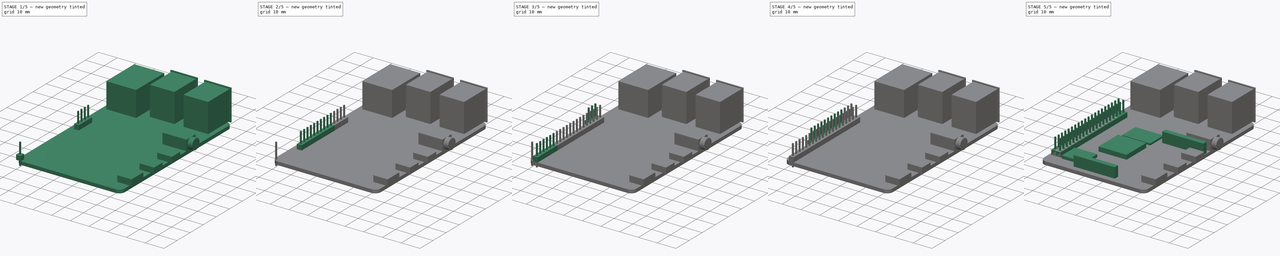
[diagram: build sequence overview — one tinted view per stage of 5, left to right]
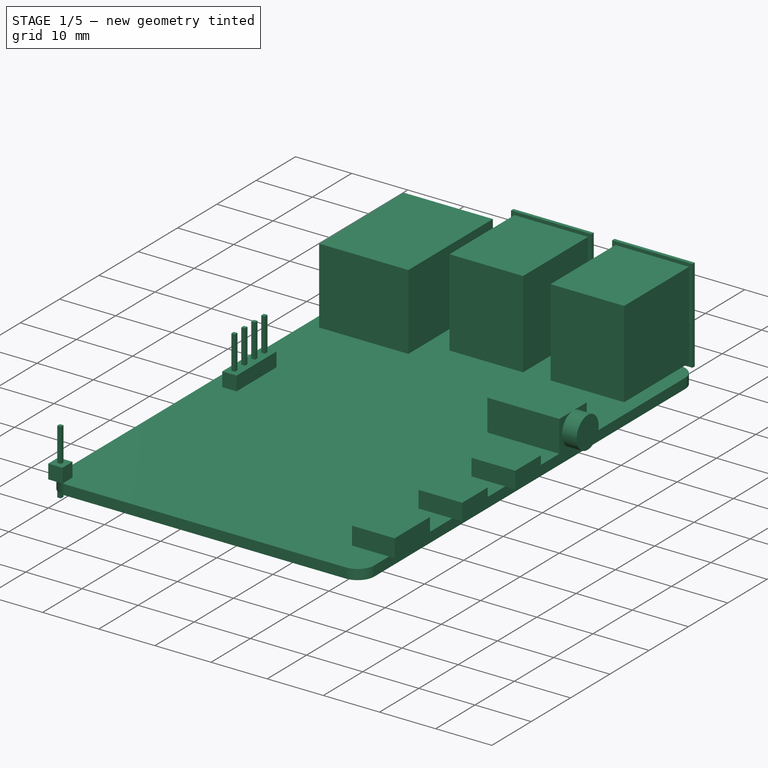
[diagram: stage 1 of 5 — iso view after this stage's code; geometry added in this stage tinted green]
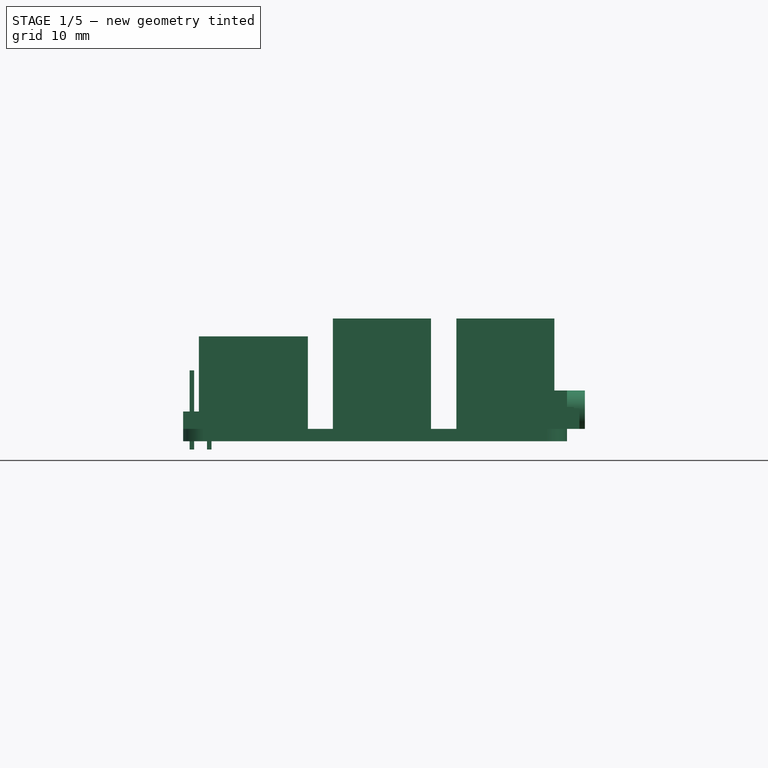
[diagram: stage 1 of 5 — front view after this stage's code; geometry added in this stage tinted green]
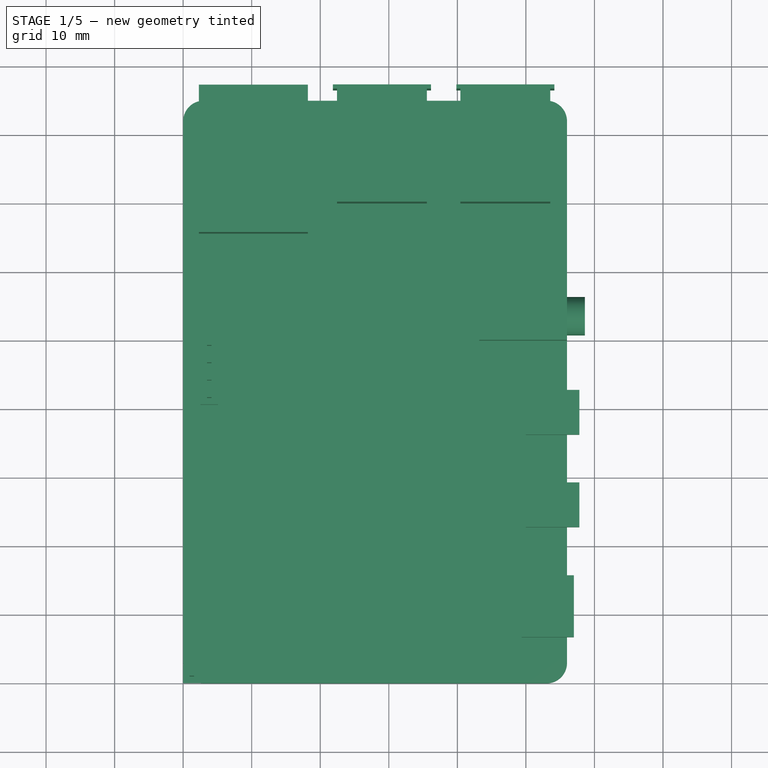
[diagram: stage 1 of 5 — top view after this stage's code; geometry added in this stage tinted green]
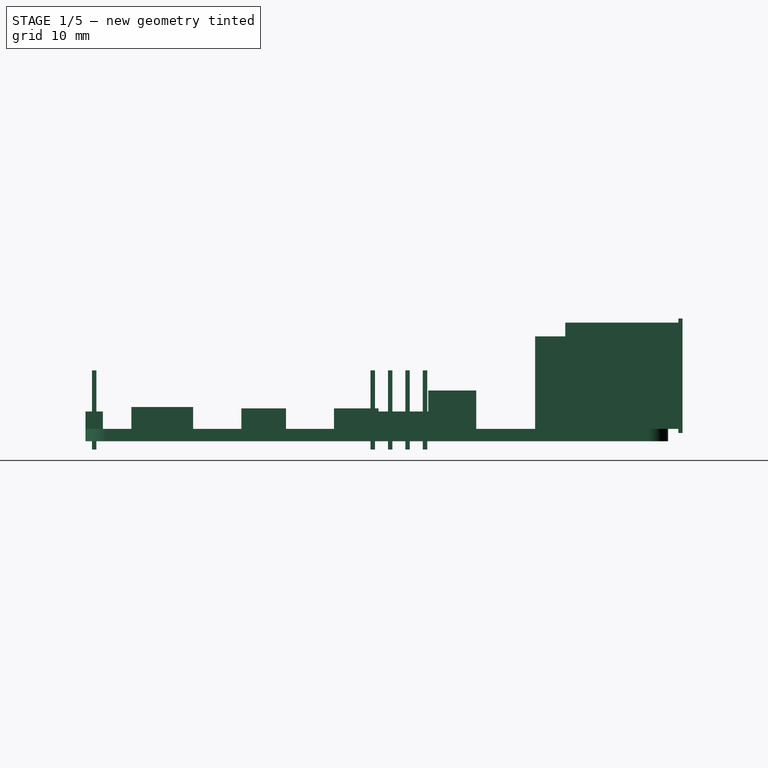
[diagram: stage 1 of 5 — right view after this stage's code; geometry added in this stage tinted green]
FCSTD DOCUMENT  (FreeCAD 0.21R33771 (Git))
Label: RPI_Board_autosave
License: Creative Commons Attribution-ShareAlike 4.0
LicenseURL: https://creativecommons.org/licenses/by-sa/4.0/
objects: Part::Box×94, Part::Fuse×44, Part::Part2DObjectPython×4, Part::MultiFuse×2, Sketcher::SketchObject×2, Part::Cylinder×1, PartDesign::Pad×1, PartDesign::Body×1
note: 150 computed .brp shape members not serialized (recipe doc carries the construction recipe); baked Part::Feature solids carry a one-line shape summary decoded from their .brp

FEATURE [Part::Box] cube075
  AttacherType = Attacher::AttachEngine3D
  Height = 2.54
  Length = 2.54
  Width = 2.54
FEATURE [Part::Box] cube076
  AttacherType = Attacher::AttachEngine3D
  Height = 11.54
  Length = 0.65
  Placement = pos=(0.945,0.945,-3) rot=(0,0,1;0rad)
  Width = 0.65
FEATURE [Part::Box] cube077
  AttacherType = Attacher::AttachEngine3D
  Height = 2.54
  Length = 2.54
  Width = 2.54
FEATURE [Part::Box] cube078
  AttacherType = Attacher::AttachEngine3D
  Height = 11.54
  Length = 0.65
  Placement = pos=(0.945,0.945,-3) rot=(0,0,1;0rad)
  Width = 0.65
FEATURE [Part::Fuse] union036
  Base = -> cube077
  Placement = pos=(2.54,40.64,0) rot=(0,0,1;0rad)
  Tool = -> cube078
FEATURE [Part::Box] cube079
  AttacherType = Attacher::AttachEngine3D
  Height = 2.54
  Length = 2.54
  Width = 2.54
FEATURE [Part::Box] cube080
  AttacherType = Attacher::AttachEngine3D
  Height = 11.54
  Length = 0.65
  Placement = pos=(0.945,0.945,-3) rot=(0,0,1;0rad)
  Width = 0.65
FEATURE [Part::Fuse] union037
  Base = -> cube079
  Placement = pos=(2.54,43.18,0) rot=(0,0,1;0rad)
  Tool = -> cube080
FEATURE [Part::Box] cube081
  AttacherType = Attacher::AttachEngine3D
  Height = 2.54
  Length = 2.54
  Width = 2.54
FEATURE [Part::Box] cube082
  AttacherType = Attacher::AttachEngine3D
  Height = 11.54
  Length = 0.65
  Placement = pos=(0.945,0.945,-3) rot=(0,0,1;0rad)
  Width = 0.65
FEATURE [Part::Fuse] union038
  Base = -> cube081
  Placement = pos=(2.54,45.72,0) rot=(0,0,1;0rad)
  Tool = -> cube082
FEATURE [Part::Box] cube083
  AttacherType = Attacher::AttachEngine3D
  Height = 2.54
  Length = 2.54
  Width = 2.54
FEATURE [Part::Box] cube084
  AttacherType = Attacher::AttachEngine3D
  Height = 11.54
  Length = 0.65
  Placement = pos=(0.945,0.945,-3) rot=(0,0,1;0rad)
  Width = 0.65
FEATURE [Part::Fuse] union039
  Base = -> cube083
  Placement = pos=(2.54,48.26,0) rot=(0,0,1;0rad)
  Tool = -> cube084
FEATURE [Part::Box] cube085
  AttacherType = Attacher::AttachEngine3D
  Height = 13.5
  Length = 15.9
  Placement = pos=(2.3,65.6,0) rot=(0,0,1;0rad)
  Width = 21.5
FEATURE [Part::Box] cube086
  AttacherType = Attacher::AttachEngine3D
  Height = 15.5
  Length = 13.1
  Width = 17.1
FEATURE [Part::Box] cube087
  AttacherType = Attacher::AttachEngine3D
  Height = 16.7
  Length = 14.3
  Placement = pos=(-0.6,16.5,-0.6) rot=(0,0,1;0rad)
  Width = 0.6
FEATURE [Part::Fuse] Group003
  Base = -> cube086
  Placement = pos=(22.45,70,0) rot=(0,0,1;0rad)
  Tool = -> cube087
FEATURE [Part::Box] cube088
  AttacherType = Attacher::AttachEngine3D
  Height = 15.5
  Length = 13.1
  Width = 17.1
FEATURE [Part::Box] cube089
  AttacherType = Attacher::AttachEngine3D
  Height = 16.7
  Length = 14.3
  Placement = pos=(-0.6,16.5,-0.6) rot=(0,0,1;0rad)
  Width = 0.6
FEATURE [Part::Fuse] Group004
  Base = -> cube088
  Placement = pos=(40.45,70,0) rot=(0,0,1;0rad)
  Tool = -> cube089
FEATURE [Part::Box] cube090
  AttacherType = Attacher::AttachEngine3D
  Height = 3
  Length = 7.8
  Placement = pos=(50,22.75,0) rot=(0,0,1;0rad)
  Width = 6.5
FEATURE [Part::Box] cube091
  AttacherType = Attacher::AttachEngine3D
  Height = 3
  Length = 7.8
  Placement = pos=(50,36.25,0) rot=(0,0,1;0rad)
  Width = 6.5
FEATURE [Part::Box] cube092
  AttacherType = Attacher::AttachEngine3D
  Height = 5.6
  Length = 12.8
  Width = 7
FEATURE [Part::Cylinder] cylinder
  Angle = 360
  AttacherType = Attacher::AttachEngine3D
  FirstAngle = 0
  Height = 2.6
  Placement = pos=(12.8,3.5,2.8) rot=(0,1,0;1.5708rad)
  Radius = 2.8
  SecondAngle = 0
FEATURE [Part::Fuse] Group005
  Base = -> cube092
  Placement = pos=(43.2,50,0) rot=(0,0,1;0rad)
  Tool = -> cylinder
FEATURE [Part::Box] cube093
  AttacherType = Attacher::AttachEngine3D
  Height = 3.2
  Length = 7.6
  Placement = pos=(49.4,6.7,0) rot=(0,0,1;0rad)
  Width = 9
FEATURE [Part::Part2DObjectPython] Circle  # Draft 2D object (typed FeaturePython)
  Area = 28.2743
  FirstAngle = 0
  LastAngle = 0
  MakeFace = true
  Placement = pos=(3,3,0) rot=(0,0,1;0rad)
  Radius = 3
FEATURE [Part::Part2DObjectPython] Circle001  # Draft 2D object (typed FeaturePython)
  Area = 28.2743
  FirstAngle = 0
  LastAngle = 0
  MakeFace = true
  Placement = pos=(53,3,0) rot=(0,0,1;0rad)
  Radius = 3
FEATURE [Part::Part2DObjectPython] Circle002  # Draft 2D object (typed FeaturePython)
  Area = 28.2743
  FirstAngle = 0
  LastAngle = 0
  MakeFace = true
  Placement = pos=(53,82,0) rot=(0,0,1;0rad)
  Radius = 3
FEATURE [Part::Part2DObjectPython] Circle003  # Draft 2D object (typed FeaturePython)
  Area = 28.2743
  FirstAngle = 0
  LastAngle = 0
  MakeFace = true
  Placement = pos=(3,82,0) rot=(0,0,1;0rad)
  Radius = 3
FEATURE [Sketcher::SketchObject] Sketch
  FullyConstrained = true
  MapMode = 5
  Support = -> [XY_Plane]
  sketch-geometry (10):
    g0: ArcOfCircle CenterX=3 CenterY=3 CenterZ=0 NormalX=0 NormalY=0 NormalZ=1 AngleXU=0 Radius=3 StartAngle=3.14159 EndAngle=4.71239
    g1: LineSegment StartX=0 StartY=3 StartZ=0 EndX=0 EndY=82 EndZ=0
    g2: ArcOfCircle CenterX=3 CenterY=82 CenterZ=0 NormalX=0 NormalY=0 NormalZ=1 AngleXU=0 Radius=3 StartAngle=1.5708 EndAngle=3.14159
    g3: LineSegment StartX=3 StartY=85 StartZ=0 EndX=53 EndY=85 EndZ=0
    g4: ArcOfCircle CenterX=53 CenterY=82 CenterZ=0 NormalX=0 NormalY=0 NormalZ=1 AngleXU=0 Radius=3 StartAngle=-1.8e-15 EndAngle=1.5708
    g5: LineSegment StartX=56 StartY=82 StartZ=0 EndX=56 EndY=3 EndZ=0
    g6: ArcOfCircle CenterX=53 CenterY=3 CenterZ=0 NormalX=0 NormalY=0 NormalZ=1 AngleXU=0 Radius=3 StartAngle=4.71239 EndAngle=6.28319
    g7: LineSegment StartX=53 StartY=2.904e-13 StartZ=0 EndX=3 EndY=2.904e-13 EndZ=0
    g8: GeomPoint X=0 Y=0 Z=0
    g9: GeomPoint X=56 Y=85 Z=0
  constraints (23):
    c: Tangent(g0,g1) = 1.5708
    c: Tangent(g1,g2) = 1.5708
    c: Tangent(g2,g3) = 1.5708
    c: Tangent(g3,g4) = 1.5708
    c: Tangent(g4,g5) = 1.5708
    c: Tangent(g5,g6) = 1.5708
    c: Tangent(g6,g7) = 1.5708
    c: Tangent(g7,g0) = 1.5708
    c: Horizontal(g3)
    c: Horizontal(g7)
    c: Vertical(g1)
    c: Vertical(g5)
    c: Equal(g0,g2)
    c: Equal(g2,g4)
    c: Equal(g4,g6)
    c: PointOnObject(g8,g1)
    c: PointOnObject(g8,g7)
    c: PointOnObject(g9,g3)
    c: PointOnObject(g9,g5)
    c: Coincident(g8,g-1)
    c: Radius(g2) = 3
    c: DistanceY(g8,g2) = 85
    c: DistanceX(g1,g4) = 56
FEATURE [PartDesign::Pad] Pad
  Direction = (0,0,1)
  Length = 1.8
  Length2 = 10
  Profile = -> Sketch
  ReferenceAxis = -> Sketch [N_Axis]
  Reversed = true
  Type = 0
FEATURE [Sketcher::SketchObject] Sketch001
  FullyConstrained = true
  MapMode = 5
  Support = -> [XY_Plane]
  expr: Constraints[16] = 56 - 3.5
  expr: Constraints[17] = 58 + 3.5
  sketch-geometry (8):
    g0: Circle CenterX=3.5 CenterY=1.25 CenterZ=0 NormalX=0 NormalY=0 NormalZ=1 AngleXU=0 Radius=1.375
    g1: Circle CenterX=56 CenterY=1.25 CenterZ=0 NormalX=0 NormalY=0 NormalZ=1 AngleXU=0 Radius=1.375
    g2: Circle CenterX=3.5 CenterY=62.75 CenterZ=0 NormalX=0 NormalY=0 NormalZ=1 AngleXU=0 Radius=1.375
    g3: Circle CenterX=56 CenterY=62.75 CenterZ=0 NormalX=0 NormalY=0 NormalZ=1 AngleXU=0 Radius=1.375
    g4: LineSegment StartX=3.5 StartY=62.75 StartZ=0 EndX=56 EndY=62.75 EndZ=0
    g5: LineSegment StartX=56 StartY=62.75 StartZ=0 EndX=56 EndY=1.25 EndZ=0
    g6: LineSegment StartX=56 StartY=1.25 StartZ=0 EndX=3.5 EndY=1.25 EndZ=0
    g7: LineSegment StartX=3.5 StartY=1.25 StartZ=0 EndX=3.5 EndY=62.75 EndZ=0
  constraints (20):
    c: Coincident(g4,g5)
    c: Coincident(g5,g6)
    c: Coincident(g6,g7)
    c: Coincident(g7,g4)
    c: Horizontal(g4)
    c: Horizontal(g6)
    c: Vertical(g5)
    c: Vertical(g7)
    c: Coincident(g4,g2)
    c: Coincident(g5,g1)
    c: Coincident(g6,g0)
    c: Coincident(g4,g3)
    c: Diameter(g3) = 2.75
    c: Equal(g3,g2)
    c: Equal(g2,g0)
    c: Equal(g0,g1)
    c: DistanceX(g6,g6) = 52.5
    c: DistanceY(g5,g5) = 61.5
    c: DistanceX(g-1,g0) = 3.5
    c: DistanceY(g-1,g0) = 1.25
FEATURE [PartDesign::Body] Body
  Group = -> [Sketch,Pad,Sketch001]
  Origin = -> Origin
  Tip = -> Pad
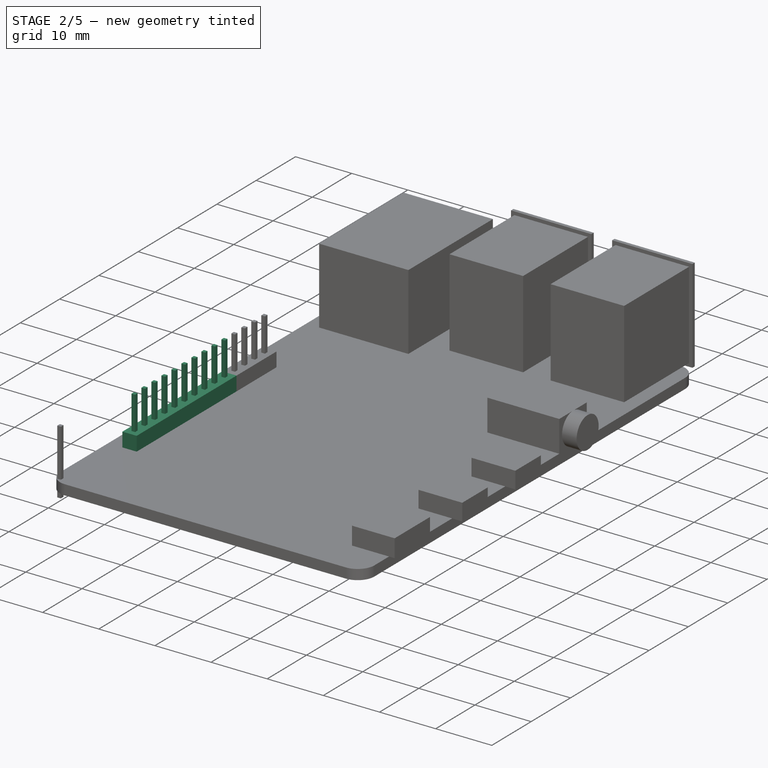
[diagram: stage 2 of 5 — iso view after this stage's code; geometry added in this stage tinted green]
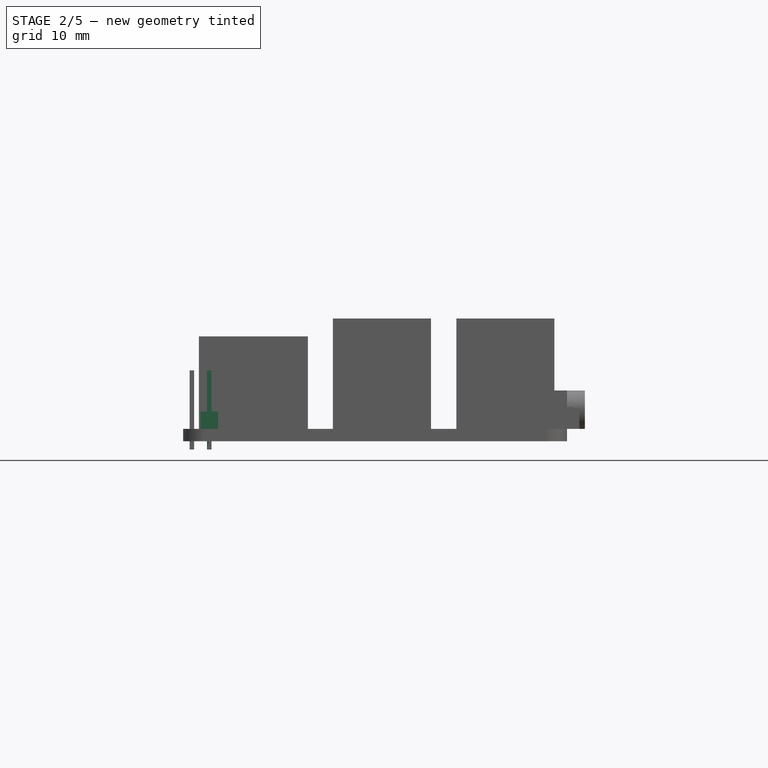
[diagram: stage 2 of 5 — front view after this stage's code; geometry added in this stage tinted green]
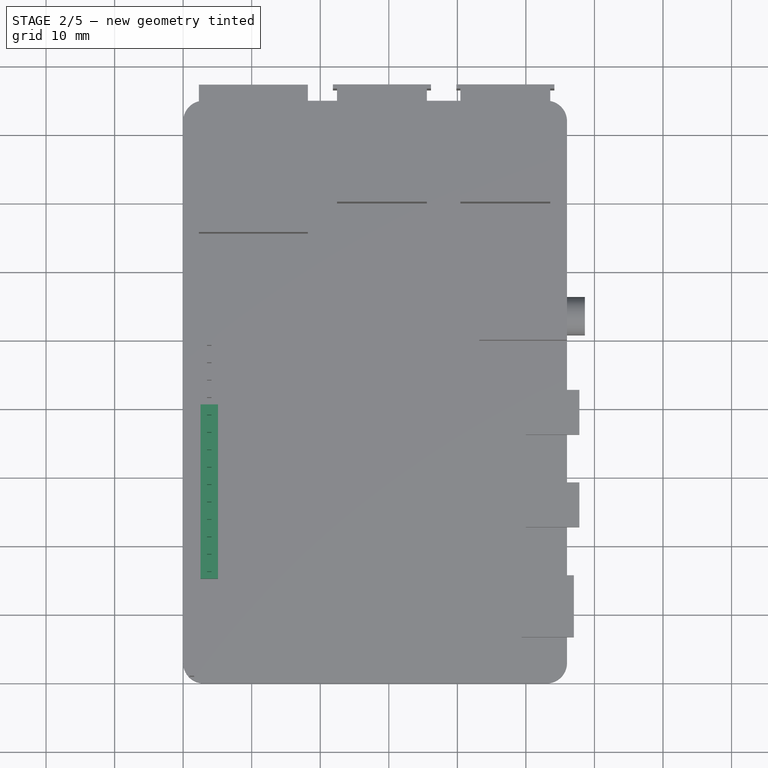
[diagram: stage 2 of 5 — top view after this stage's code; geometry added in this stage tinted green]
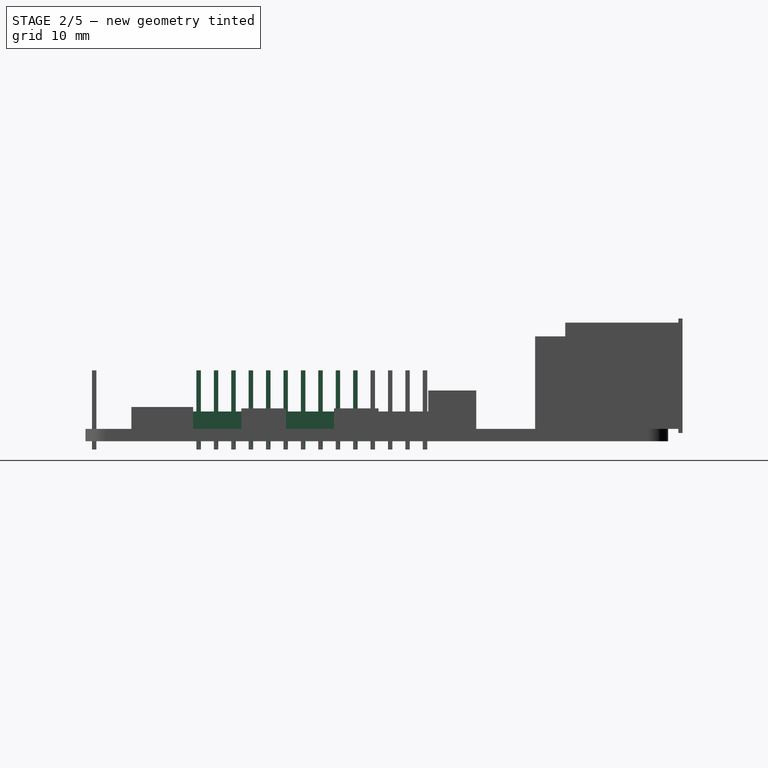
[diagram: stage 2 of 5 — right view after this stage's code; geometry added in this stage tinted green]
FEATURE [Part::Box] cube056
  AttacherType = Attacher::AttachEngine3D
  Height = 11.54
  Length = 0.65
  Placement = pos=(0.945,0.945,-3) rot=(0,0,1;0rad)
  Width = 0.65
FEATURE [Part::Box] cube057
  AttacherType = Attacher::AttachEngine3D
  Height = 2.54
  Length = 2.54
  Width = 2.54
FEATURE [Part::Box] cube058
  AttacherType = Attacher::AttachEngine3D
  Height = 11.54
  Length = 0.65
  Placement = pos=(0.945,0.945,-3) rot=(0,0,1;0rad)
  Width = 0.65
FEATURE [Part::Fuse] union026
  Base = -> cube057
  Placement = pos=(2.54,15.24,0) rot=(0,0,1;0rad)
  Tool = -> cube058
FEATURE [Part::Box] cube059
  AttacherType = Attacher::AttachEngine3D
  Height = 2.54
  Length = 2.54
  Width = 2.54
FEATURE [Part::Box] cube060
  AttacherType = Attacher::AttachEngine3D
  Height = 11.54
  Length = 0.65
  Placement = pos=(0.945,0.945,-3) rot=(0,0,1;0rad)
  Width = 0.65
FEATURE [Part::Fuse] union027
  Base = -> cube059
  Placement = pos=(2.54,17.78,0) rot=(0,0,1;0rad)
  Tool = -> cube060
FEATURE [Part::Box] cube061
  AttacherType = Attacher::AttachEngine3D
  Height = 2.54
  Length = 2.54
  Width = 2.54
FEATURE [Part::Box] cube062
  AttacherType = Attacher::AttachEngine3D
  Height = 11.54
  Length = 0.65
  Placement = pos=(0.945,0.945,-3) rot=(0,0,1;0rad)
  Width = 0.65
FEATURE [Part::Fuse] union028
  Base = -> cube061
  Placement = pos=(2.54,20.32,0) rot=(0,0,1;0rad)
  Tool = -> cube062
FEATURE [Part::Box] cube063
  AttacherType = Attacher::AttachEngine3D
  Height = 2.54
  Length = 2.54
  Width = 2.54
FEATURE [Part::Box] cube064
  AttacherType = Attacher::AttachEngine3D
  Height = 11.54
  Length = 0.65
  Placement = pos=(0.945,0.945,-3) rot=(0,0,1;0rad)
  Width = 0.65
FEATURE [Part::Fuse] union029
  Base = -> cube063
  Placement = pos=(2.54,22.86,0) rot=(0,0,1;0rad)
  Tool = -> cube064
FEATURE [Part::Box] cube065
  AttacherType = Attacher::AttachEngine3D
  Height = 2.54
  Length = 2.54
  Width = 2.54
FEATURE [Part::Box] cube066
  AttacherType = Attacher::AttachEngine3D
  Height = 11.54
  Length = 0.65
  Placement = pos=(0.945,0.945,-3) rot=(0,0,1;0rad)
  Width = 0.65
FEATURE [Part::Fuse] union030
  Base = -> cube065
  Placement = pos=(2.54,25.4,0) rot=(0,0,1;0rad)
  Tool = -> cube066
FEATURE [Part::Box] cube067
  AttacherType = Attacher::AttachEngine3D
  Height = 2.54
  Length = 2.54
  Width = 2.54
FEATURE [Part::Box] cube068
  AttacherType = Attacher::AttachEngine3D
  Height = 11.54
  Length = 0.65
  Placement = pos=(0.945,0.945,-3) rot=(0,0,1;0rad)
  Width = 0.65
FEATURE [Part::Fuse] union031
  Base = -> cube067
  Placement = pos=(2.54,27.94,0) rot=(0,0,1;0rad)
  Tool = -> cube068
FEATURE [Part::Box] cube069
  AttacherType = Attacher::AttachEngine3D
  Height = 2.54
  Length = 2.54
  Width = 2.54
FEATURE [Part::Box] cube070
  AttacherType = Attacher::AttachEngine3D
  Height = 11.54
  Length = 0.65
  Placement = pos=(0.945,0.945,-3) rot=(0,0,1;0rad)
  Width = 0.65
FEATURE [Part::Fuse] union032
  Base = -> cube069
  Placement = pos=(2.54,30.48,0) rot=(0,0,1;0rad)
  Tool = -> cube070
FEATURE [Part::Box] cube071
  AttacherType = Attacher::AttachEngine3D
  Height = 2.54
  Length = 2.54
  Width = 2.54
FEATURE [Part::Box] cube072
  AttacherType = Attacher::AttachEngine3D
  Height = 11.54
  Length = 0.65
  Placement = pos=(0.945,0.945,-3) rot=(0,0,1;0rad)
  Width = 0.65
FEATURE [Part::Fuse] union033
  Base = -> cube071
  Placement = pos=(2.54,33.02,0) rot=(0,0,1;0rad)
  Tool = -> cube072
FEATURE [Part::Box] cube073
  AttacherType = Attacher::AttachEngine3D
  Height = 2.54
  Length = 2.54
  Width = 2.54
FEATURE [Part::Box] cube074
  AttacherType = Attacher::AttachEngine3D
  Height = 11.54
  Length = 0.65
  Placement = pos=(0.945,0.945,-3) rot=(0,0,1;0rad)
  Width = 0.65
FEATURE [Part::Fuse] union034
  Base = -> cube073
  Placement = pos=(2.54,35.56,0) rot=(0,0,1;0rad)
  Tool = -> cube074
FEATURE [Part::Fuse] union035
  Base = -> cube075
  Placement = pos=(2.54,38.1,0) rot=(0,0,1;0rad)
  Tool = -> cube076
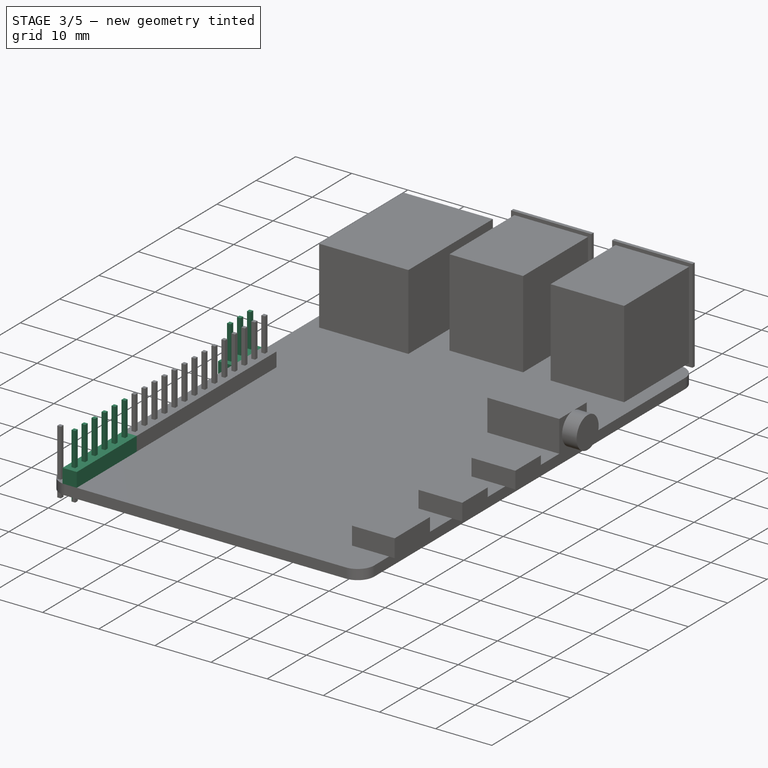
[diagram: stage 3 of 5 — iso view after this stage's code; geometry added in this stage tinted green]
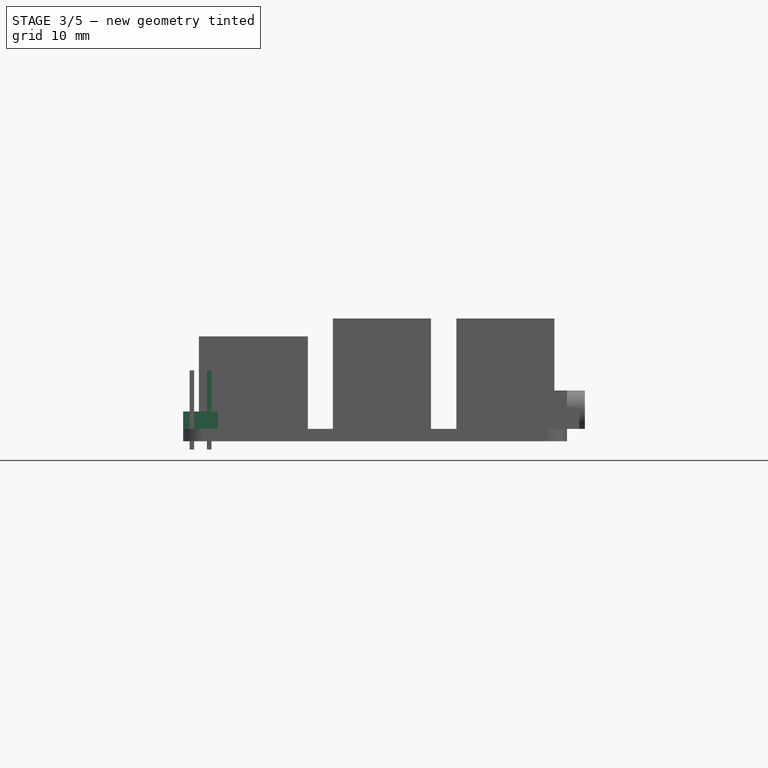
[diagram: stage 3 of 5 — front view after this stage's code; geometry added in this stage tinted green]
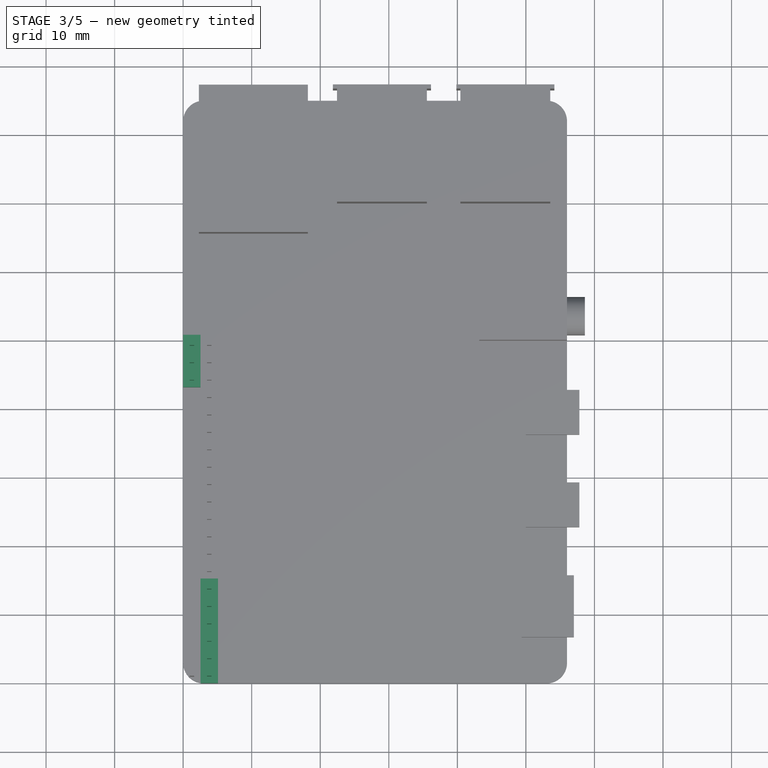
[diagram: stage 3 of 5 — top view after this stage's code; geometry added in this stage tinted green]
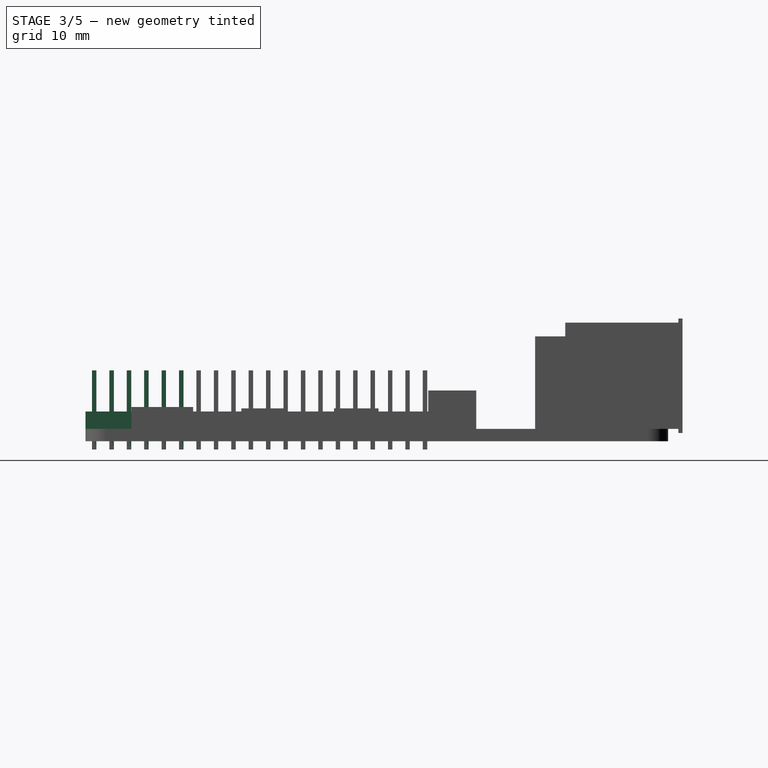
[diagram: stage 3 of 5 — right view after this stage's code; geometry added in this stage tinted green]
FEATURE [Part::Box] cube038
  AttacherType = Attacher::AttachEngine3D
  Height = 11.54
  Length = 0.65
  Placement = pos=(0.945,0.945,-3) rot=(0,0,1;0rad)
  Width = 0.65
FEATURE [Part::Box] cube039
  AttacherType = Attacher::AttachEngine3D
  Height = 2.54
  Length = 2.54
  Width = 2.54
FEATURE [Part::Box] cube040
  AttacherType = Attacher::AttachEngine3D
  Height = 11.54
  Length = 0.65
  Placement = pos=(0.945,0.945,-3) rot=(0,0,1;0rad)
  Width = 0.65
FEATURE [Part::Fuse] union017
  Base = -> cube039
  Placement = pos=(0,43.18,0) rot=(0,0,1;0rad)
  Tool = -> cube040
FEATURE [Part::Box] cube041
  AttacherType = Attacher::AttachEngine3D
  Height = 2.54
  Length = 2.54
  Width = 2.54
FEATURE [Part::Box] cube042
  AttacherType = Attacher::AttachEngine3D
  Height = 11.54
  Length = 0.65
  Placement = pos=(0.945,0.945,-3) rot=(0,0,1;0rad)
  Width = 0.65
FEATURE [Part::Fuse] union018
  Base = -> cube041
  Placement = pos=(0,45.72,0) rot=(0,0,1;0rad)
  Tool = -> cube042
FEATURE [Part::Box] cube043
  AttacherType = Attacher::AttachEngine3D
  Height = 2.54
  Length = 2.54
  Width = 2.54
FEATURE [Part::Box] cube044
  AttacherType = Attacher::AttachEngine3D
  Height = 11.54
  Length = 0.65
  Placement = pos=(0.945,0.945,-3) rot=(0,0,1;0rad)
  Width = 0.65
FEATURE [Part::Fuse] union019
  Base = -> cube043
  Placement = pos=(0,48.26,0) rot=(0,0,1;0rad)
  Tool = -> cube044
FEATURE [Part::Box] cube045
  AttacherType = Attacher::AttachEngine3D
  Height = 2.54
  Length = 2.54
  Width = 2.54
FEATURE [Part::Box] cube046
  AttacherType = Attacher::AttachEngine3D
  Height = 11.54
  Length = 0.65
  Placement = pos=(0.945,0.945,-3) rot=(0,0,1;0rad)
  Width = 0.65
FEATURE [Part::Fuse] union020
  Base = -> cube045
  Placement = pos=(2.54,0,0) rot=(0,0,1;0rad)
  Tool = -> cube046
FEATURE [Part::Box] cube047
  AttacherType = Attacher::AttachEngine3D
  Height = 2.54
  Length = 2.54
  Width = 2.54
FEATURE [Part::Box] cube048
  AttacherType = Attacher::AttachEngine3D
  Height = 11.54
  Length = 0.65
  Placement = pos=(0.945,0.945,-3) rot=(0,0,1;0rad)
  Width = 0.65
FEATURE [Part::Fuse] union021
  Base = -> cube047
  Placement = pos=(2.54,2.54,0) rot=(0,0,1;0rad)
  Tool = -> cube048
FEATURE [Part::Box] cube049
  AttacherType = Attacher::AttachEngine3D
  Height = 2.54
  Length = 2.54
  Width = 2.54
FEATURE [Part::Box] cube050
  AttacherType = Attacher::AttachEngine3D
  Height = 11.54
  Length = 0.65
  Placement = pos=(0.945,0.945,-3) rot=(0,0,1;0rad)
  Width = 0.65
FEATURE [Part::Fuse] union022
  Base = -> cube049
  Placement = pos=(2.54,5.08,0) rot=(0,0,1;0rad)
  Tool = -> cube050
FEATURE [Part::Box] cube051
  AttacherType = Attacher::AttachEngine3D
  Height = 2.54
  Length = 2.54
  Width = 2.54
FEATURE [Part::Box] cube052
  AttacherType = Attacher::AttachEngine3D
  Height = 11.54
  Length = 0.65
  Placement = pos=(0.945,0.945,-3) rot=(0,0,1;0rad)
  Width = 0.65
FEATURE [Part::Fuse] union023
  Base = -> cube051
  Placement = pos=(2.54,7.62,0) rot=(0,0,1;0rad)
  Tool = -> cube052
FEATURE [Part::Box] cube053
  AttacherType = Attacher::AttachEngine3D
  Height = 2.54
  Length = 2.54
  Width = 2.54
FEATURE [Part::Box] cube054
  AttacherType = Attacher::AttachEngine3D
  Height = 11.54
  Length = 0.65
  Placement = pos=(0.945,0.945,-3) rot=(0,0,1;0rad)
  Width = 0.65
FEATURE [Part::Fuse] union024
  Base = -> cube053
  Placement = pos=(2.54,10.16,0) rot=(0,0,1;0rad)
  Tool = -> cube054
FEATURE [Part::Box] cube055
  AttacherType = Attacher::AttachEngine3D
  Height = 2.54
  Length = 2.54
  Width = 2.54
FEATURE [Part::Fuse] union025
  Base = -> cube055
  Placement = pos=(2.54,12.7,0) rot=(0,0,1;0rad)
  Tool = -> cube056
FEATURE [Part::MultiFuse] Group001
  Shapes = -> [union020,union021,union022,union023,union024,union025,union026,union027,union028,union029,union030,union031,union032,union033,union034,union035,union036,union037,union038,union039]
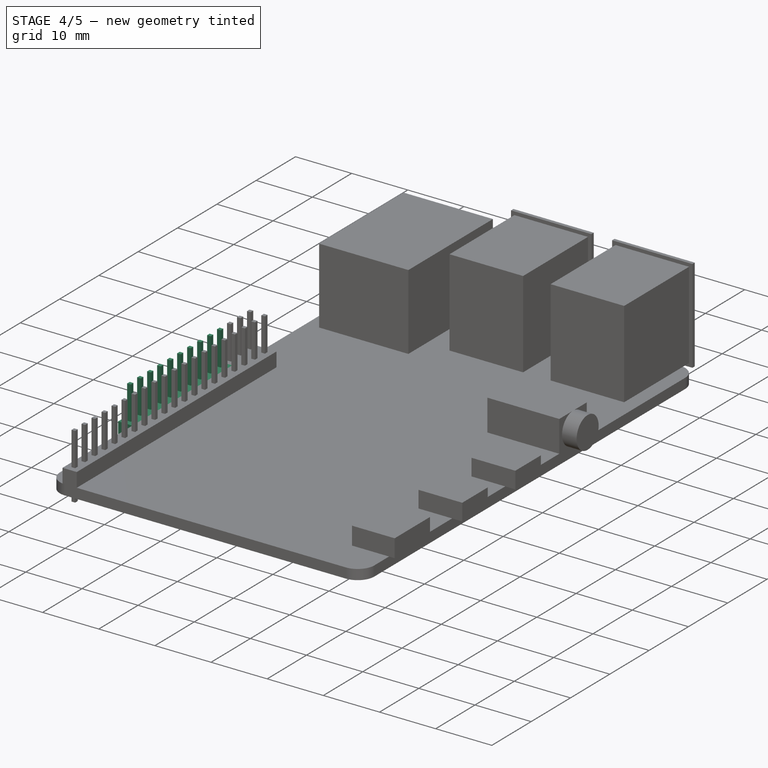
[diagram: stage 4 of 5 — iso view after this stage's code; geometry added in this stage tinted green]
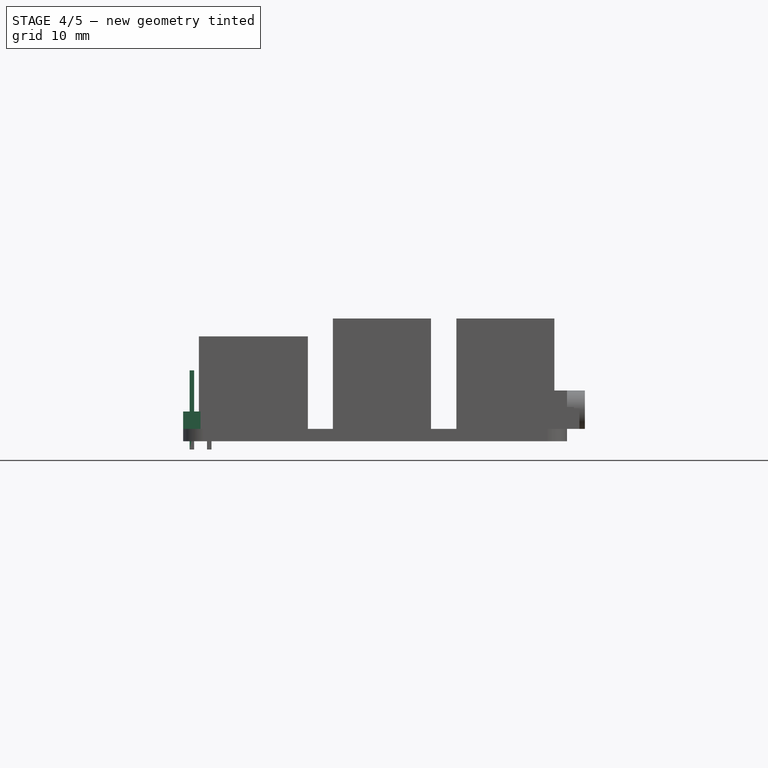
[diagram: stage 4 of 5 — front view after this stage's code; geometry added in this stage tinted green]
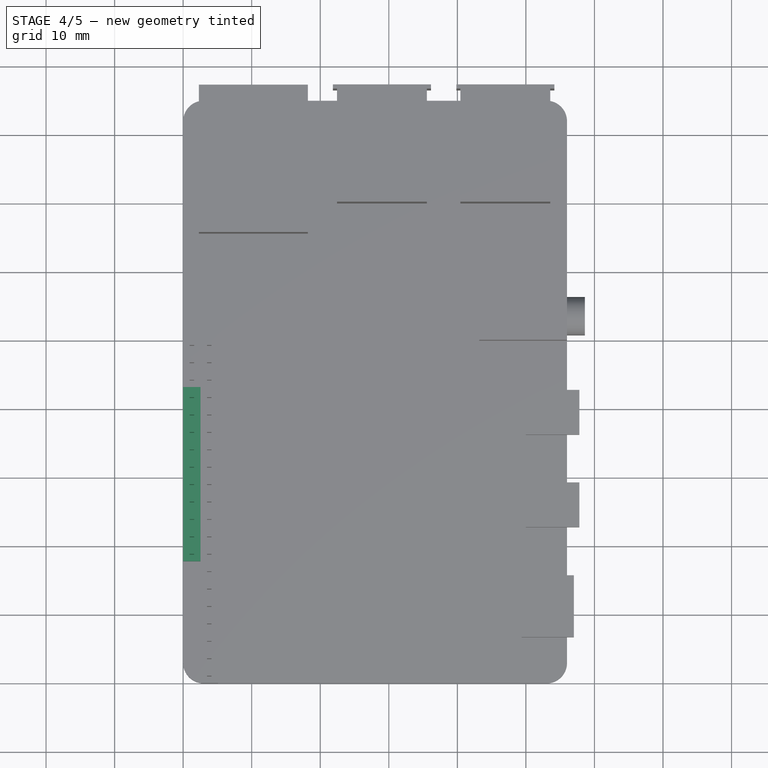
[diagram: stage 4 of 5 — top view after this stage's code; geometry added in this stage tinted green]
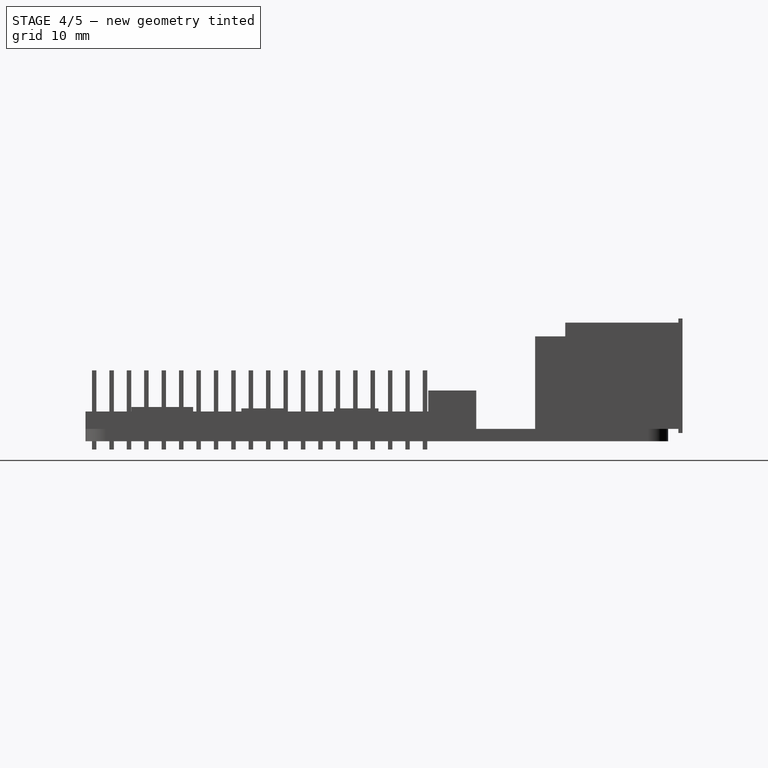
[diagram: stage 4 of 5 — right view after this stage's code; geometry added in this stage tinted green]
FEATURE [Part::Box] cube019
  AttacherType = Attacher::AttachEngine3D
  Height = 2.54
  Length = 2.54
  Width = 2.54
FEATURE [Part::Box] cube020
  AttacherType = Attacher::AttachEngine3D
  Height = 11.54
  Length = 0.65
  Placement = pos=(0.945,0.945,-3) rot=(0,0,1;0rad)
  Width = 0.65
FEATURE [Part::Fuse] union007
  Base = -> cube019
  Placement = pos=(0,17.78,0) rot=(0,0,1;0rad)
  Tool = -> cube020
FEATURE [Part::Box] cube021
  AttacherType = Attacher::AttachEngine3D
  Height = 2.54
  Length = 2.54
  Width = 2.54
FEATURE [Part::Box] cube022
  AttacherType = Attacher::AttachEngine3D
  Height = 11.54
  Length = 0.65
  Placement = pos=(0.945,0.945,-3) rot=(0,0,1;0rad)
  Width = 0.65
FEATURE [Part::Fuse] union008
  Base = -> cube021
  Placement = pos=(0,20.32,0) rot=(0,0,1;0rad)
  Tool = -> cube022
FEATURE [Part::Box] cube023
  AttacherType = Attacher::AttachEngine3D
  Height = 2.54
  Length = 2.54
  Width = 2.54
FEATURE [Part::Box] cube024
  AttacherType = Attacher::AttachEngine3D
  Height = 11.54
  Length = 0.65
  Placement = pos=(0.945,0.945,-3) rot=(0,0,1;0rad)
  Width = 0.65
FEATURE [Part::Fuse] union009
  Base = -> cube023
  Placement = pos=(0,22.86,0) rot=(0,0,1;0rad)
  Tool = -> cube024
FEATURE [Part::Box] cube025
  AttacherType = Attacher::AttachEngine3D
  Height = 2.54
  Length = 2.54
  Width = 2.54
FEATURE [Part::Box] cube026
  AttacherType = Attacher::AttachEngine3D
  Height = 11.54
  Length = 0.65
  Placement = pos=(0.945,0.945,-3) rot=(0,0,1;0rad)
  Width = 0.65
FEATURE [Part::Fuse] union010
  Base = -> cube025
  Placement = pos=(0,25.4,0) rot=(0,0,1;0rad)
  Tool = -> cube026
FEATURE [Part::Box] cube027
  AttacherType = Attacher::AttachEngine3D
  Height = 2.54
  Length = 2.54
  Width = 2.54
FEATURE [Part::Box] cube028
  AttacherType = Attacher::AttachEngine3D
  Height = 11.54
  Length = 0.65
  Placement = pos=(0.945,0.945,-3) rot=(0,0,1;0rad)
  Width = 0.65
FEATURE [Part::Fuse] union011
  Base = -> cube027
  Placement = pos=(0,27.94,0) rot=(0,0,1;0rad)
  Tool = -> cube028
FEATURE [Part::Box] cube029
  AttacherType = Attacher::AttachEngine3D
  Height = 2.54
  Length = 2.54
  Width = 2.54
FEATURE [Part::Box] cube030
  AttacherType = Attacher::AttachEngine3D
  Height = 11.54
  Length = 0.65
  Placement = pos=(0.945,0.945,-3) rot=(0,0,1;0rad)
  Width = 0.65
FEATURE [Part::Fuse] union012
  Base = -> cube029
  Placement = pos=(0,30.48,0) rot=(0,0,1;0rad)
  Tool = -> cube030
FEATURE [Part::Box] cube031
  AttacherType = Attacher::AttachEngine3D
  Height = 2.54
  Length = 2.54
  Width = 2.54
FEATURE [Part::Box] cube032
  AttacherType = Attacher::AttachEngine3D
  Height = 11.54
  Length = 0.65
  Placement = pos=(0.945,0.945,-3) rot=(0,0,1;0rad)
  Width = 0.65
FEATURE [Part::Fuse] union013
  Base = -> cube031
  Placement = pos=(0,33.02,0) rot=(0,0,1;0rad)
  Tool = -> cube032
FEATURE [Part::Box] cube033
  AttacherType = Attacher::AttachEngine3D
  Height = 2.54
  Length = 2.54
  Width = 2.54
FEATURE [Part::Box] cube034
  AttacherType = Attacher::AttachEngine3D
  Height = 11.54
  Length = 0.65
  Placement = pos=(0.945,0.945,-3) rot=(0,0,1;0rad)
  Width = 0.65
FEATURE [Part::Fuse] union014
  Base = -> cube033
  Placement = pos=(0,35.56,0) rot=(0,0,1;0rad)
  Tool = -> cube034
FEATURE [Part::Box] cube035
  AttacherType = Attacher::AttachEngine3D
  Height = 2.54
  Length = 2.54
  Width = 2.54
FEATURE [Part::Box] cube036
  AttacherType = Attacher::AttachEngine3D
  Height = 11.54
  Length = 0.65
  Placement = pos=(0.945,0.945,-3) rot=(0,0,1;0rad)
  Width = 0.65
FEATURE [Part::Fuse] union015
  Base = -> cube035
  Placement = pos=(0,38.1,0) rot=(0,0,1;0rad)
  Tool = -> cube036
FEATURE [Part::Box] cube037
  AttacherType = Attacher::AttachEngine3D
  Height = 2.54
  Length = 2.54
  Width = 2.54
FEATURE [Part::Fuse] union016
  Base = -> cube037
  Placement = pos=(0,40.64,0) rot=(0,0,1;0rad)
  Tool = -> cube038
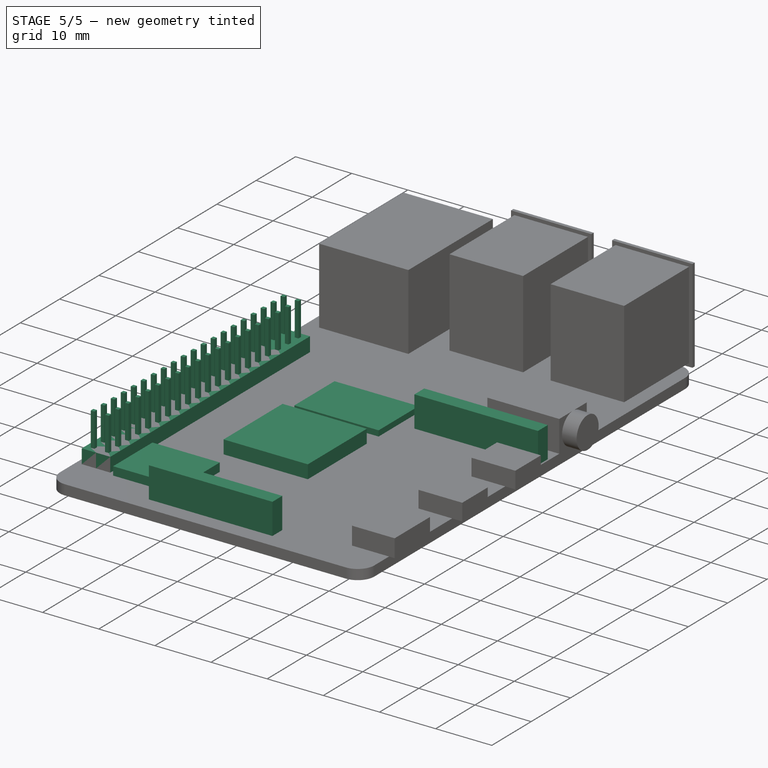
[diagram: stage 5 of 5 — iso view after this stage's code; geometry added in this stage tinted green]
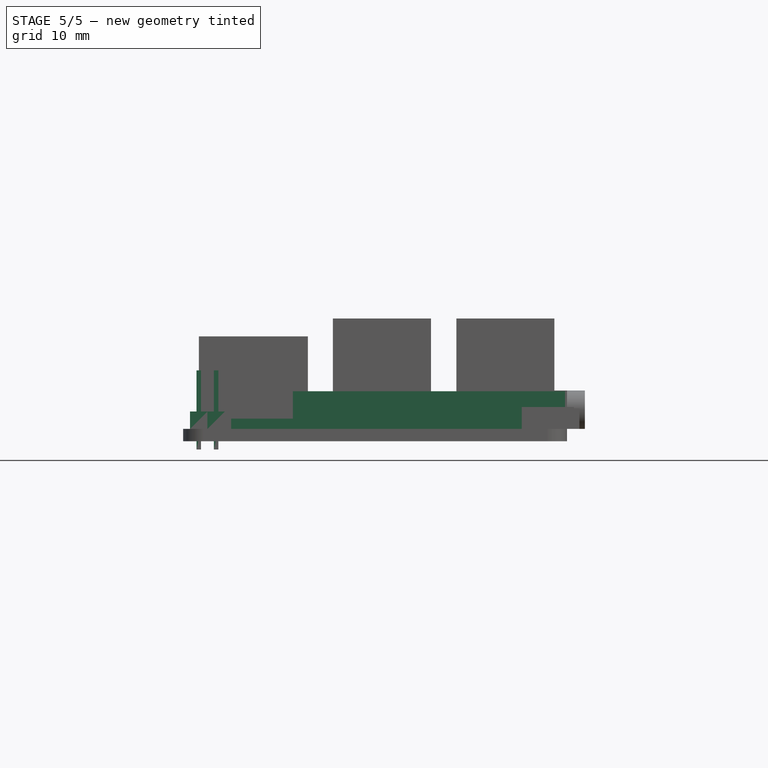
[diagram: stage 5 of 5 — front view after this stage's code; geometry added in this stage tinted green]
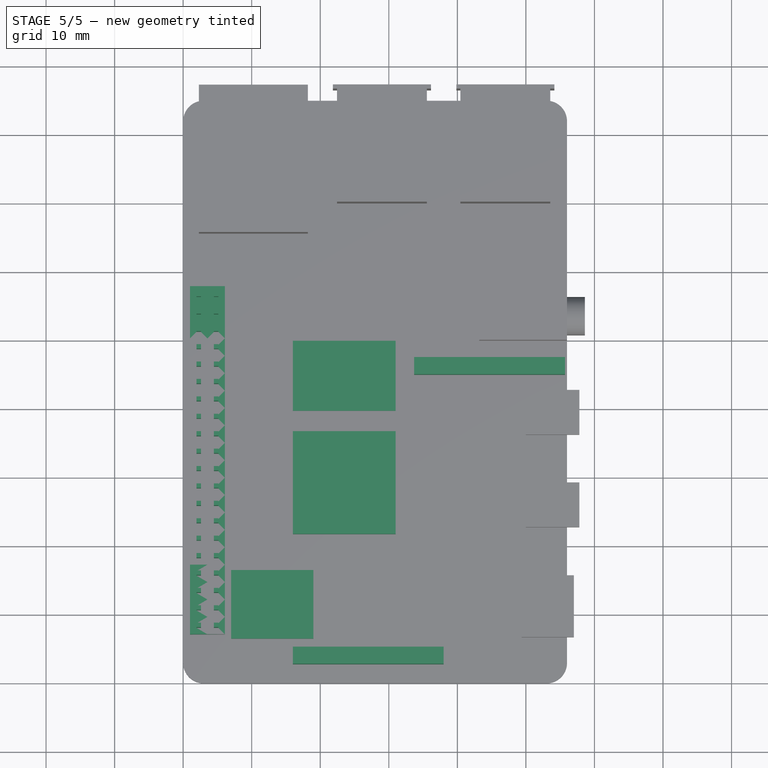
[diagram: stage 5 of 5 — top view after this stage's code; geometry added in this stage tinted green]
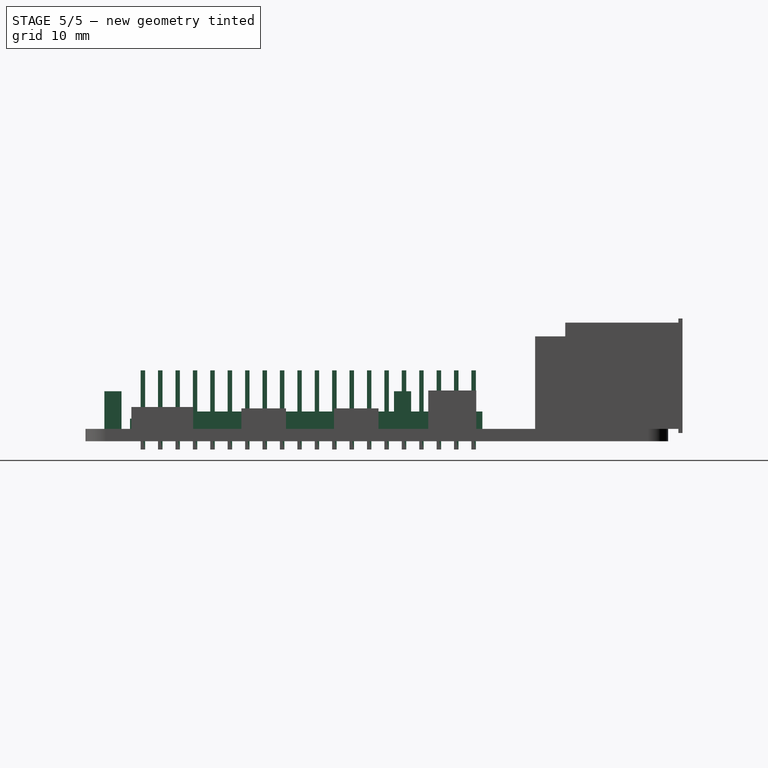
[diagram: stage 5 of 5 — right view after this stage's code; geometry added in this stage tinted green]
FEATURE [Part::Box] cube
  AttacherType = Attacher::AttachEngine3D
  Height = 2.4
  Length = 15
  Placement = pos=(16,21.75,0) rot=(0,0,1;0rad)
  Width = 15
FEATURE [Part::Box] cube001
  AttacherType = Attacher::AttachEngine3D
  Height = 1
  Length = 15
  Placement = pos=(16,39.75,0) rot=(0,0,1;0rad)
  Width = 10.2
FEATURE [Part::Box] cube002
  AttacherType = Attacher::AttachEngine3D
  Height = 1.5
  Length = 12
  Placement = pos=(7,6.5,0) rot=(0,0,1;0rad)
  Width = 10
FEATURE [Part::Box] cube003
  AttacherType = Attacher::AttachEngine3D
  Height = 5.5
  Length = 22
  Placement = pos=(16,2.75,0) rot=(0,0,1;0rad)
  Width = 2.5
FEATURE [Part::Box] cube004
  AttacherType = Attacher::AttachEngine3D
  Height = 5.5
  Length = 22
  Placement = pos=(33.7,45,0) rot=(0,0,1;0rad)
  Width = 2.5
FEATURE [Part::Box] cube005
  AttacherType = Attacher::AttachEngine3D
  Height = 2.54
  Length = 2.54
  Width = 2.54
FEATURE [Part::Box] cube006
  AttacherType = Attacher::AttachEngine3D
  Height = 11.54
  Length = 0.65
  Placement = pos=(0.945,0.945,-3) rot=(0,0,1;0rad)
  Width = 0.65
FEATURE [Part::Fuse] union
  Base = -> cube005
  Tool = -> cube006
FEATURE [Part::Box] cube007
  AttacherType = Attacher::AttachEngine3D
  Height = 2.54
  Length = 2.54
  Width = 2.54
FEATURE [Part::Box] cube008
  AttacherType = Attacher::AttachEngine3D
  Height = 11.54
  Length = 0.65
  Placement = pos=(0.945,0.945,-3) rot=(0,0,1;0rad)
  Width = 0.65
FEATURE [Part::Fuse] union001
  Base = -> cube007
  Placement = pos=(0,2.54,0) rot=(0,0,1;0rad)
  Tool = -> cube008
FEATURE [Part::Box] cube009
  AttacherType = Attacher::AttachEngine3D
  Height = 2.54
  Length = 2.54
  Width = 2.54
FEATURE [Part::Box] cube010
  AttacherType = Attacher::AttachEngine3D
  Height = 11.54
  Length = 0.65
  Placement = pos=(0.945,0.945,-3) rot=(0,0,1;0rad)
  Width = 0.65
FEATURE [Part::Fuse] union002
  Base = -> cube009
  Placement = pos=(0,5.08,0) rot=(0,0,1;0rad)
  Tool = -> cube010
FEATURE [Part::Box] cube011
  AttacherType = Attacher::AttachEngine3D
  Height = 2.54
  Length = 2.54
  Width = 2.54
FEATURE [Part::Box] cube012
  AttacherType = Attacher::AttachEngine3D
  Height = 11.54
  Length = 0.65
  Placement = pos=(0.945,0.945,-3) rot=(0,0,1;0rad)
  Width = 0.65
FEATURE [Part::Fuse] union003
  Base = -> cube011
  Placement = pos=(0,7.62,0) rot=(0,0,1;0rad)
  Tool = -> cube012
FEATURE [Part::Box] cube013
  AttacherType = Attacher::AttachEngine3D
  Height = 2.54
  Length = 2.54
  Width = 2.54
FEATURE [Part::Box] cube014
  AttacherType = Attacher::AttachEngine3D
  Height = 11.54
  Length = 0.65
  Placement = pos=(0.945,0.945,-3) rot=(0,0,1;0rad)
  Width = 0.65
FEATURE [Part::Fuse] union004
  Base = -> cube013
  Placement = pos=(0,10.16,0) rot=(0,0,1;0rad)
  Tool = -> cube014
FEATURE [Part::Box] cube015
  AttacherType = Attacher::AttachEngine3D
  Height = 2.54
  Length = 2.54
  Width = 2.54
FEATURE [Part::Box] cube016
  AttacherType = Attacher::AttachEngine3D
  Height = 11.54
  Length = 0.65
  Placement = pos=(0.945,0.945,-3) rot=(0,0,1;0rad)
  Width = 0.65
FEATURE [Part::Fuse] union005
  Base = -> cube015
  Placement = pos=(0,12.7,0) rot=(0,0,1;0rad)
  Tool = -> cube016
FEATURE [Part::Box] cube017
  AttacherType = Attacher::AttachEngine3D
  Height = 2.54
  Length = 2.54
  Width = 2.54
FEATURE [Part::Box] cube018
  AttacherType = Attacher::AttachEngine3D
  Height = 11.54
  Length = 0.65
  Placement = pos=(0.945,0.945,-3) rot=(0,0,1;0rad)
  Width = 0.65
FEATURE [Part::Fuse] union006
  Base = -> cube017
  Placement = pos=(0,15.24,0) rot=(0,0,1;0rad)
  Tool = -> cube018
FEATURE [Part::MultiFuse] Group
  Shapes = -> [union,union001,union002,union003,union004,union005,union006,union007,union008,union009,union010,union011,union012,union013,union014,union015,union016,union017,union018,union019]
FEATURE [Part::Fuse] Group002
  Base = -> Group
  Placement = pos=(1,7.1,0) rot=(0,0,1;0rad)
  Tool = -> Group001
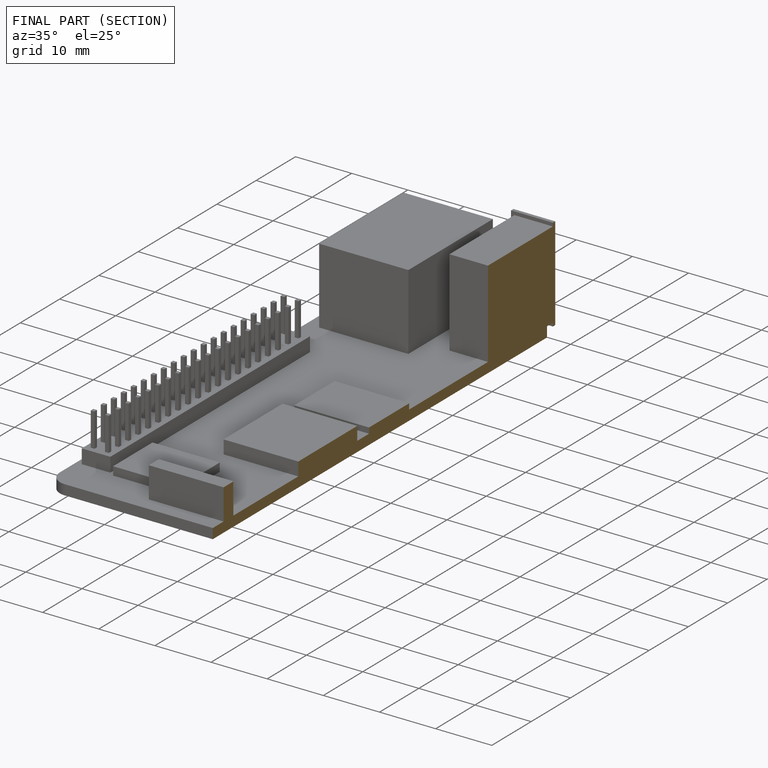
[diagram: finished part — half-section view (interior)]
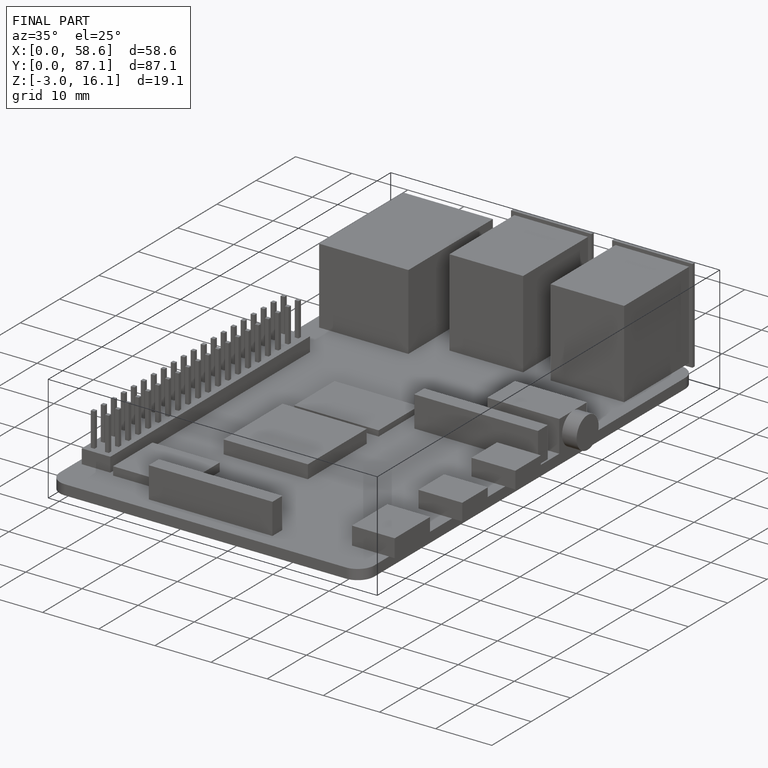
[diagram: finished part — iso view with bounding-box wireframe]
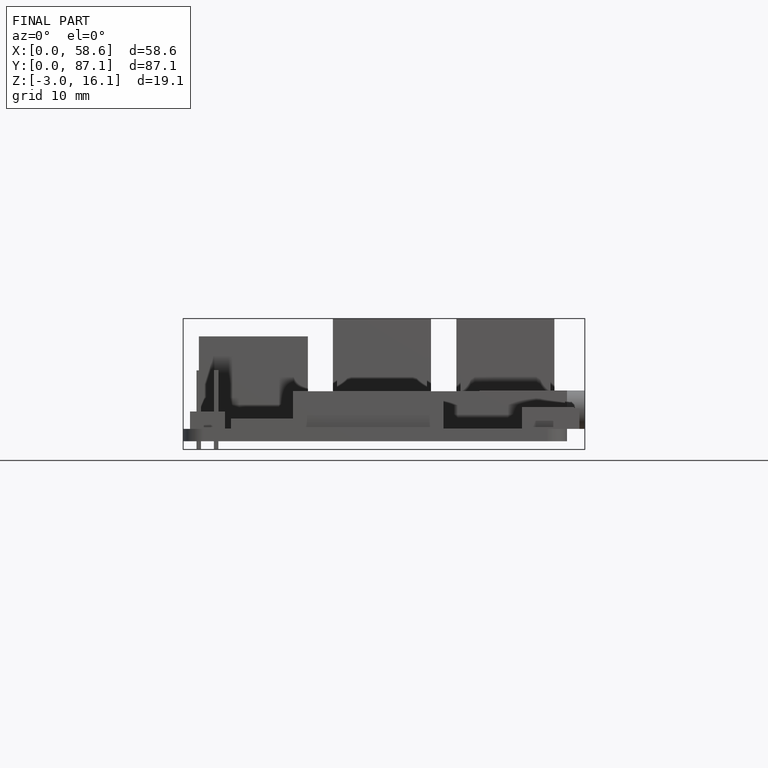
[diagram: finished part — front view with bounding-box wireframe]
